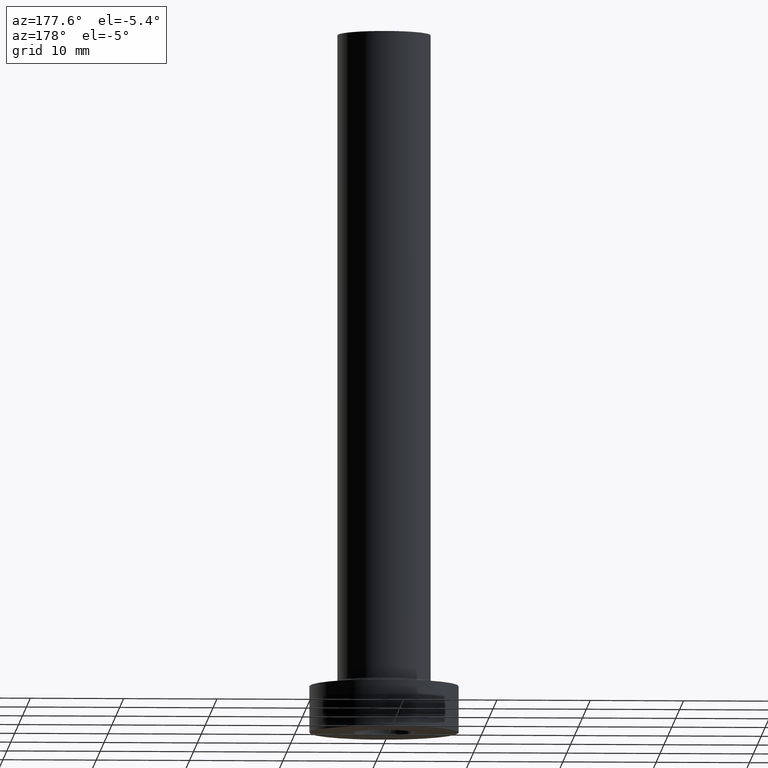
[diagram: clean part render]
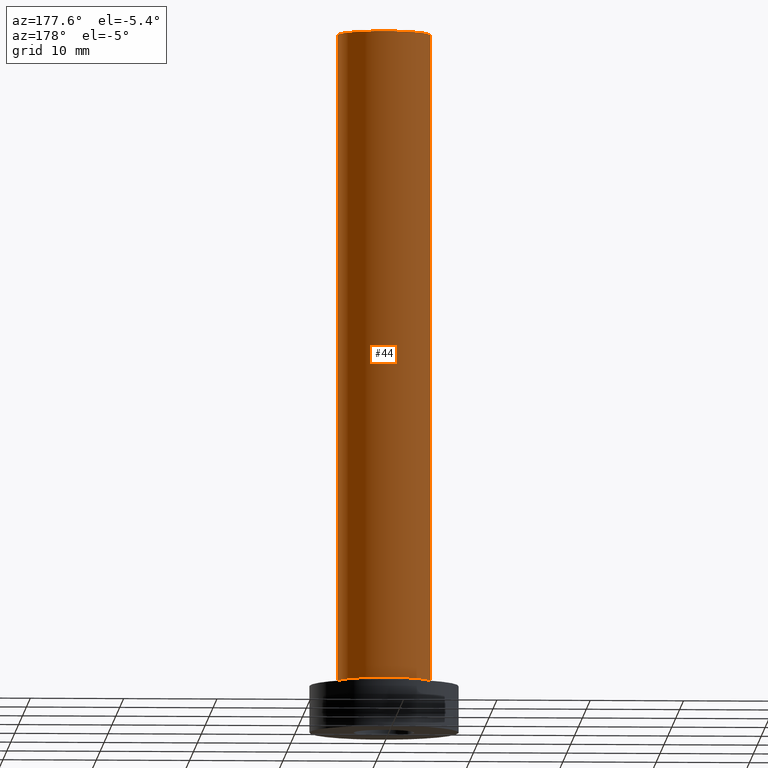
[diagram: same view with one face highlighted and labeled with its STEP entity id]
A machine part, auxiliary view. The second image highlights one B-rep face of the part: STEP entity #44.
In plain terms, the highlighted cylindrical surface (partial cylindrical patch) has radius 5 mm, axis along (-0, -0, -1).
Its self-contained STEP definition (entity closure, byte-faithful):
#12 = VECTOR ( 'NONE', #167, 1000.000000000000000 ) ;
#31 = CIRCLE ( 'NONE', #48, 5.000000000000000000 ) ;
#38 = ORIENTED_EDGE ( 'NONE', *, *, #100, .T. ) ;
#42 = DIRECTION ( 'NONE',  ( -0.000000000000000000, -0.000000000000000000, -1.000000000000000000 ) ) ;
#43 = DIRECTION ( 'NONE',  ( -0.000000000000000000, -0.000000000000000000, -1.000000000000000000 ) ) ;
#44 = ADVANCED_FACE ( 'NONE', ( #351 ), #255, .T. ) ;
#48 = AXIS2_PLACEMENT_3D ( 'NONE', #448, #97, #298 ) ;
#71 = CARTESIAN_POINT ( 'NONE',  ( -5.000000000000000000, 0.000000000000000000, 75.00000000000001421 ) ) ;
#86 = CARTESIAN_POINT ( 'NONE',  ( 0.000000000000000000, 0.000000000000000000, 75.00000000000001421 ) ) ;
#97 = DIRECTION ( 'NONE',  ( 0.000000000000000000, 0.000000000000000000, 1.000000000000000000 ) ) ;
#100 = EDGE_CURVE ( 'NONE', #256, #202, #31, .T. ) ;
#114 = CARTESIAN_POINT ( 'NONE',  ( 5.000000000000000000, 6.123233995736766282E-16, 5.500000000000005329 ) ) ;
#131 = VECTOR ( 'NONE', #42, 1000.000000000000000 ) ;
#136 = VERTEX_POINT ( 'NONE', #71 ) ;
#151 = CARTESIAN_POINT ( 'NONE',  ( -5.000000000000000000, 0.000000000000000000, 75.00000000000001421 ) ) ;
#158 = CARTESIAN_POINT ( 'NONE',  ( 0.000000000000000000, 0.000000000000000000, 75.00000000000001421 ) ) ;
#167 = DIRECTION ( 'NONE',  ( -0.000000000000000000, -0.000000000000000000, -1.000000000000000000 ) ) ;
#202 = VERTEX_POINT ( 'NONE', #456 ) ;
#215 = AXIS2_PLACEMENT_3D ( 'NONE', #86, #43, #318 ) ;
#235 = ORIENTED_EDGE ( 'NONE', *, *, #390, .T. ) ;
#246 = DIRECTION ( 'NONE',  ( 1.000000000000000000, 0.000000000000000000, 0.000000000000000000 ) ) ;
#255 = CYLINDRICAL_SURFACE ( 'NONE', #215, 5.000000000000000000 ) ;
#256 = VERTEX_POINT ( 'NONE', #114 ) ;
#258 = EDGE_CURVE ( 'NONE', #136, #202, #461, .T. ) ;
#283 = EDGE_CURVE ( 'NONE', #439, #136, #333, .T. ) ;
#295 = CARTESIAN_POINT ( 'NONE',  ( 5.000000000000000000, 6.123233995736766282E-16, 75.00000000000001421 ) ) ;
#298 = DIRECTION ( 'NONE',  ( 1.000000000000000000, 0.000000000000000000, 0.000000000000000000 ) ) ;
#312 = EDGE_LOOP ( 'NONE', ( #348, #235, #38, #436 ) ) ;
#318 = DIRECTION ( 'NONE',  ( -1.000000000000000000, 0.000000000000000000, 0.000000000000000000 ) ) ;
#333 = CIRCLE ( 'NONE', #360, 5.000000000000000000 ) ;
#334 = LINE ( 'NONE', #295, #12 ) ;
#348 = ORIENTED_EDGE ( 'NONE', *, *, #283, .F. ) ;
#351 = FACE_OUTER_BOUND ( 'NONE', #312, .T. ) ;
#360 = AXIS2_PLACEMENT_3D ( 'NONE', #158, #394, #246 ) ;
#390 = EDGE_CURVE ( 'NONE', #439, #256, #334, .T. ) ;
#394 = DIRECTION ( 'NONE',  ( 0.000000000000000000, 0.000000000000000000, 1.000000000000000000 ) ) ;
#403 = CARTESIAN_POINT ( 'NONE',  ( 5.000000000000000000, 6.123233995736766282E-16, 75.00000000000001421 ) ) ;
#436 = ORIENTED_EDGE ( 'NONE', *, *, #258, .F. ) ;
#439 = VERTEX_POINT ( 'NONE', #403 ) ;
#448 = CARTESIAN_POINT ( 'NONE',  ( 0.000000000000000000, 0.000000000000000000, 5.500000000000005329 ) ) ;
#456 = CARTESIAN_POINT ( 'NONE',  ( -5.000000000000000000, 0.000000000000000000, 5.500000000000005329 ) ) ;
#461 = LINE ( 'NONE', #151, #131 ) ;